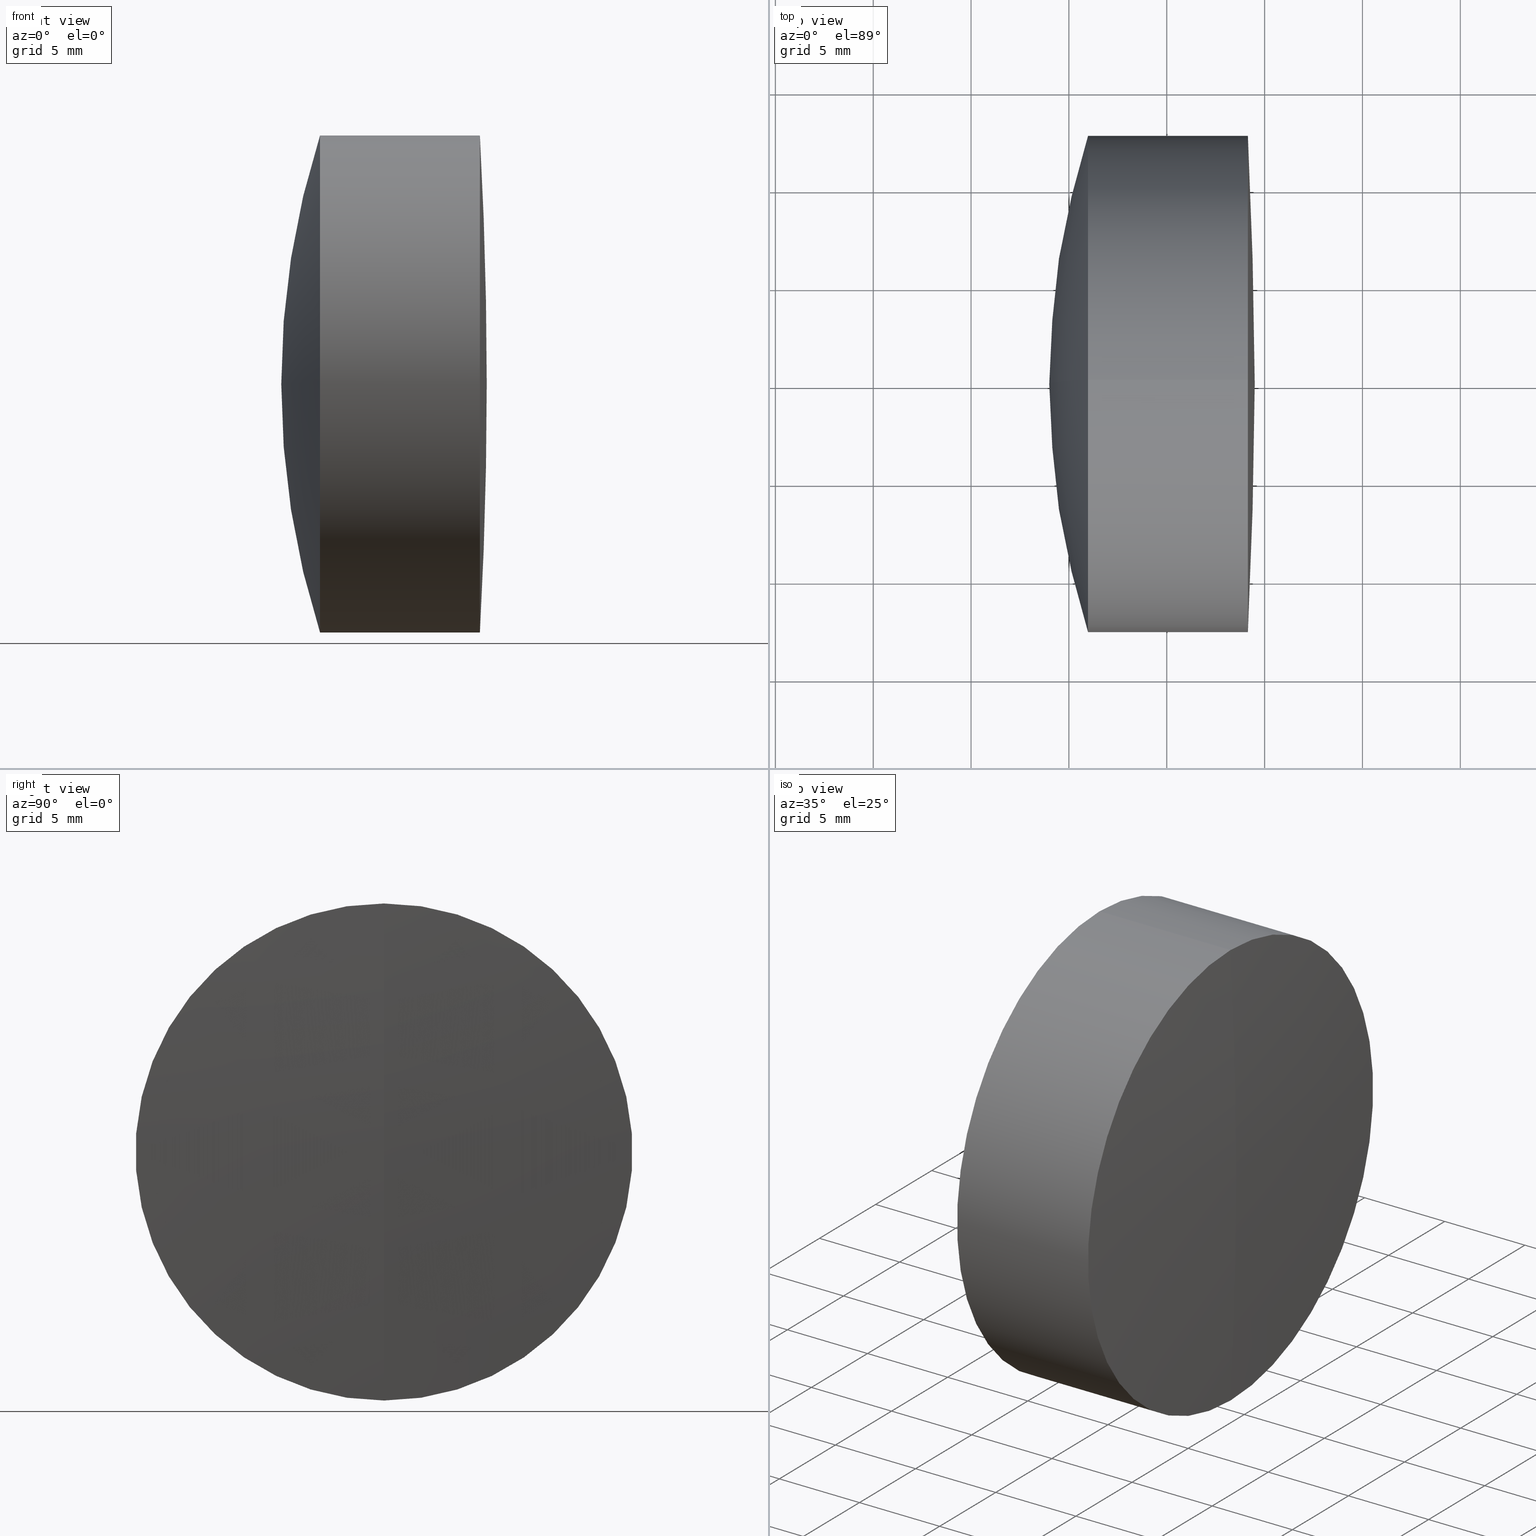
[diagram: canonical four-view strip — front | top / right | iso, engineering-drawing reading convention]
A machine part, canonical four-view strip (front | top / right | iso — engineering-drawing reading convention). The complete STEP part file that produces these views, byte-faithful:
ISO-10303-21;
HEADER;
FILE_DESCRIPTION (( 'STEP AP214' ),
    '1' );
FILE_NAME ('145055.STEP',
    '2019-05-13T07:56:06',
    ( 'user' ),
    ( '΢���й�' ),
    'SwSTEP 2.0',
    'SolidWorks 2016',
    '' );
FILE_SCHEMA (( 'AUTOMOTIVE_DESIGN' ));
ENDSEC;

DATA;
#1 = FILL_AREA_STYLE_COLOUR ( '', #113 ) ;
#2 = ORIENTED_EDGE ( 'NONE', *, *, #186, .F. ) ;
#3 = DIRECTION ( 'NONE',  ( 0.0000000000000000000, 0.0000000000000000000, 1.000000000000000000 ) ) ;
#4 = DIRECTION ( 'NONE',  ( 0.0000000000000000000, -1.000000000000000000, 0.0000000000000000000 ) ) ;
#5 = AXIS2_PLACEMENT_3D ( 'NONE', #204, #192, #209 ) ;
#6 = CIRCLE ( 'NONE', #199, 12.70000000000001000 ) ;
#7 = VERTEX_POINT ( 'NONE', #255 ) ;
#8 = CARTESIAN_POINT ( 'NONE',  ( 161.8331716928335000, 0.0000000000000000000, 12.69999999999999600 ) ) ;
#9 =( NAMED_UNIT ( * ) SI_UNIT ( $, .STERADIAN. ) SOLID_ANGLE_UNIT ( ) );
#10 = STYLED_ITEM ( 'NONE', ( #311 ), #265 ) ;
#11 = ADVANCED_FACE ( 'NONE', ( #98 ), #27, .F. ) ;
#12 = DIRECTION ( 'NONE',  ( -1.000000000000000000, -0.0000000000000000000, -0.0000000000000000000 ) ) ;
#13 = ORIENTED_EDGE ( 'NONE', *, *, #299, .T. ) ;
#14 = ADVANCED_FACE ( 'NONE', ( #160 ), #109, .T. ) ;
#15 = SURFACE_SIDE_STYLE ('',( #104 ) ) ;
#16 = EDGE_CURVE ( 'NONE', #56, #7, #328, .T. ) ;
#17 = CARTESIAN_POINT ( 'NONE',  ( 161.8331716928335000, 0.0000000000000000000, 0.0000000000000000000 ) ) ;
#18 = FACE_OUTER_BOUND ( 'NONE', #159, .T. ) ;
#19 = CARTESIAN_POINT ( 'NONE',  ( -0.5519199926577972300, 1.555301434917139400E-015, -12.70000000000000800 ) ) ;
#20 = CARTESIAN_POINT ( 'NONE',  ( 270.6958458084194500, 0.0000000000000000000, -3.673513936803738400E-015 ) ) ;
#21 = DIRECTION ( 'NONE',  ( 0.0000000000000000000, 0.0000000000000000000, 1.000000000000000000 ) ) ;
#22 = DIRECTION ( 'NONE',  ( 0.0000000000000000000, -1.224646799147353200E-016, 1.000000000000000000 ) ) ;
#23 = LINE ( 'NONE', #19, #237 ) ;
#24 = ORIENTED_EDGE ( 'NONE', *, *, #82, .F. ) ;
#25 = AXIS2_PLACEMENT_3D ( 'NONE', #308, #245, #220 ) ;
#26 = EDGE_CURVE ( 'NONE', #102, #137, #97, .T. ) ;
#27 = SPHERICAL_SURFACE ( 'NONE', #28, 25.90000000000001300 ) ;
#28 = AXIS2_PLACEMENT_3D ( 'NONE', #228, #50, #64 ) ;
#29 =( GEOMETRIC_REPRESENTATION_CONTEXT ( 3 ) GLOBAL_UNCERTAINTY_ASSIGNED_CONTEXT ( ( #84 ) ) GLOBAL_UNIT_ASSIGNED_CONTEXT ( ( #132, #76, #31 ) ) REPRESENTATION_CONTEXT ( 'NONE', 'WORKASPACE' ) );
#30 = VERTEX_POINT ( 'NONE', #227 ) ;
#31 =( NAMED_UNIT ( * ) SI_UNIT ( $, .STERADIAN. ) SOLID_ANGLE_UNIT ( ) );
#32 = AXIS2_PLACEMENT_3D ( 'NONE', #167, #140, #283 ) ;
#33 = CIRCLE ( 'NONE', #187, 25.90000000000000900 ) ;
#34 = LINE ( 'NONE', #127, #205 ) ;
#35 = PRODUCT_DEFINITION_CONTEXT ( 'detailed design', #59, 'design' ) ;
#36 =( LENGTH_UNIT ( ) NAMED_UNIT ( * ) SI_UNIT ( .MILLI., .METRE. ) );
#37 = LINE ( 'NONE', #309, #211 ) ;
#38 = DIRECTION ( 'NONE',  ( 0.0000000000000000000, 0.0000000000000000000, -1.000000000000000000 ) ) ;
#39 = EDGE_LOOP ( 'NONE', ( #24, #52, #298 ) ) ;
#40 = DIRECTION ( 'NONE',  ( 0.0000000000000000000, 1.000000000000000000, 0.0000000000000000000 ) ) ;
#41 = PRODUCT_RELATED_PRODUCT_CATEGORY ( 'part', '', ( #172 ) ) ;
#42 = DIRECTION ( 'NONE',  ( 0.0000000000000000000, 0.0000000000000000000, 1.000000000000000000 ) ) ;
#43 = STYLED_ITEM ( 'NONE', ( #95 ), #194 ) ;
#44 = CARTESIAN_POINT ( 'NONE',  ( 233.6683955093282600, 0.0000000000000000000, 0.0000000000000000000 ) ) ;
#45 = DIRECTION ( 'NONE',  ( -1.000000000000000000, -0.0000000000000000000, -0.0000000000000000000 ) ) ;
#46 = CIRCLE ( 'NONE', #147, 12.70000000000000600 ) ;
#47 = SPHERICAL_SURFACE ( 'NONE', #260, 41.69999999999998900 ) ;
#48 = CLOSED_SHELL ( 'NONE', ( #318, #303, #174, #143, #158, #322 ) ) ;
#49 = DIRECTION ( 'NONE',  ( 0.0000000000000000000, 0.0000000000000000000, 1.000000000000000000 ) ) ;
#50 = DIRECTION ( 'NONE',  ( 0.0000000000000000000, 1.000000000000000000, 0.0000000000000000000 ) ) ;
#51 = EDGE_CURVE ( 'NONE', #56, #55, #168, .T. ) ;
#52 = ORIENTED_EDGE ( 'NONE', *, *, #179, .T. ) ;
#53 = DIRECTION ( 'NONE',  ( 0.0000000000000000000, 0.0000000000000000000, 1.000000000000000000 ) ) ;
#54 = APPLICATION_PROTOCOL_DEFINITION ( 'draft international standard', 'automotive_design', 1998, #59 ) ;
#55 = VERTEX_POINT ( 'NONE', #257 ) ;
#56 = VERTEX_POINT ( 'NONE', #100 ) ;
#57 = FACE_OUTER_BOUND ( 'NONE', #302, .T. ) ;
#58 = AXIS2_PLACEMENT_3D ( 'NONE', #218, #161, #22 ) ;
#59 = APPLICATION_CONTEXT ( 'automotive_design' ) ;
#60 = ORIENTED_EDGE ( 'NONE', *, *, #136, .F. ) ;
#61 = AXIS2_PLACEMENT_3D ( 'NONE', #114, #271, #301 ) ;
#62 = DIRECTION ( 'NONE',  ( -1.000000000000000000, -0.0000000000000000000, -0.0000000000000000000 ) ) ;
#63 = FACE_OUTER_BOUND ( 'NONE', #290, .T. ) ;
#64 = DIRECTION ( 'NONE',  ( 0.0000000000000000000, 0.0000000000000000000, 1.000000000000000000 ) ) ;
#65 = SURFACE_STYLE_USAGE ( .BOTH. , #81 ) ;
#66 = DIRECTION ( 'NONE',  ( 0.0000000000000000000, 0.0000000000000000000, 1.000000000000000000 ) ) ;
#67 = FACE_OUTER_BOUND ( 'NONE', #154, .T. ) ;
#68 = CARTESIAN_POINT ( 'NONE',  ( 211.0958458084194300, 0.0000000000000000000, -3.185954776904472300E-015 ) ) ;
#69 = CARTESIAN_POINT ( 'NONE',  ( 233.6683955093282600, 0.0000000000000000000, 12.70000000000000600 ) ) ;
#70 = ORIENTED_EDGE ( 'NONE', *, *, #136, .T. ) ;
#71 = DIRECTION ( 'NONE',  ( 0.0000000000000000000, 1.000000000000000000, 0.0000000000000000000 ) ) ;
#72 = MECHANICAL_DESIGN_GEOMETRIC_PRESENTATION_REPRESENTATION (  '', ( #164 ), #29 ) ;
#73 = DIRECTION ( 'NONE',  ( 0.0000000000000000000, 0.0000000000000000000, 1.000000000000000000 ) ) ;
#74 = CARTESIAN_POINT ( 'NONE',  ( 239.1460140306284900, 0.0000000000000000000, 0.0000000000000000000 ) ) ;
#75 = CIRCLE ( 'NONE', #293, 12.69999999999999600 ) ;
#76 =( NAMED_UNIT ( * ) PLANE_ANGLE_UNIT ( ) SI_UNIT ( $, .RADIAN. ) );
#77 = CARTESIAN_POINT ( 'NONE',  ( 239.1460140306284900, 0.0000000000000000000, 0.0000000000000000000 ) ) ;
#78 = EDGE_LOOP ( 'NONE', ( #212, #326, #236 ) ) ;
#79 = EDGE_CURVE ( 'NONE', #30, #102, #286, .T. ) ;
#80 = ORIENTED_EDGE ( 'NONE', *, *, #79, .F. ) ;
#81 = SURFACE_SIDE_STYLE ('',( #117 ) ) ;
#82 = EDGE_CURVE ( 'NONE', #169, #346, #33, .T. ) ;
#83 = CIRCLE ( 'NONE', #116, 41.69999999999998900 ) ;
#84 = UNCERTAINTY_MEASURE_WITH_UNIT (LENGTH_MEASURE( 1.000000000000000100E-005 ), #132, 'distance_accuracy_value', 'NONE');
#85 = AXIS2_PLACEMENT_3D ( 'NONE', #256, #112, #282 ) ;
#86 = EDGE_LOOP ( 'NONE', ( #314, #115, #294, #92 ) ) ;
#87 = EDGE_CURVE ( 'NONE', #105, #191, #90, .T. ) ;
#88 = EDGE_CURVE ( 'NONE', #137, #310, #83, .T. ) ;
#89 = COLOUR_RGB ( '',1.000000000000000000, 1.000000000000000000, 1.000000000000000000 ) ;
#90 = CIRCLE ( 'NONE', #171, 25.90000000000001300 ) ;
#91 = CARTESIAN_POINT ( 'NONE',  ( 211.0958458084194300, 0.0000000000000000000, -3.185954776904472300E-015 ) ) ;
#92 = ORIENTED_EDGE ( 'NONE', *, *, #344, .F. ) ;
#93 = FILL_AREA_STYLE ('',( #267 ) ) ;
#94 = MECHANICAL_DESIGN_GEOMETRIC_PRESENTATION_REPRESENTATION (  '', ( #10 ), #229 ) ;
#95 = PRESENTATION_STYLE_ASSIGNMENT (( #65 ) ) ;
#96 = DIRECTION ( 'NONE',  ( -0.0000000000000000000, 1.000000000000000000, 1.224646799147353200E-016 ) ) ;
#97 = CIRCLE ( 'NONE', #85, 12.69999999999999600 ) ;
#98 = FACE_OUTER_BOUND ( 'NONE', #185, .T. ) ;
#99 = CYLINDRICAL_SURFACE ( 'NONE', #315, 12.69999999999999600 ) ;
#100 = CARTESIAN_POINT ( 'NONE',  ( 239.4958458084194600, 0.0000000000000000000, 1.412630082816472000E-014 ) ) ;
#101 = AXIS2_PLACEMENT_3D ( 'NONE', #135, #173, #53 ) ;
#102 = VERTEX_POINT ( 'NONE', #241 ) ;
#103 = AXIS2_PLACEMENT_3D ( 'NONE', #163, #202, #176 ) ;
#104 = SURFACE_STYLE_FILL_AREA ( #108 ) ;
#105 = VERTEX_POINT ( 'NONE', #313 ) ;
#106 = EDGE_CURVE ( 'NONE', #346, #137, #34, .T. ) ;
#107 = FACE_OUTER_BOUND ( 'NONE', #39, .T. ) ;
#108 = FILL_AREA_STYLE ('',( #279 ) ) ;
#109 = SPHERICAL_SURFACE ( 'NONE', #252, 230.7000000000000200 ) ;
#110 = CIRCLE ( 'NONE', #61, 25.90000000000000900 ) ;
#111 = SURFACE_STYLE_USAGE ( .BOTH. , #15 ) ;
#112 = DIRECTION ( 'NONE',  ( -1.000000000000000000, -0.0000000000000000000, -0.0000000000000000000 ) ) ;
#113 = COLOUR_RGB ( '',1.000000000000000000, 1.000000000000000000, 1.000000000000000000 ) ;
#114 = CARTESIAN_POINT ( 'NONE',  ( 211.0958458084194300, 0.0000000000000000000, -3.185954776904472300E-015 ) ) ;
#115 = ORIENTED_EDGE ( 'NONE', *, *, #305, .T. ) ;
#116 = AXIS2_PLACEMENT_3D ( 'NONE', #274, #96, #213 ) ;
#117 = SURFACE_STYLE_FILL_AREA ( #133 ) ;
#118 = ADVANCED_FACE ( 'NONE', ( #57 ), #183, .F. ) ;
#119 = DIRECTION ( 'NONE',  ( -1.000000000000000000, -0.0000000000000000000, -0.0000000000000000000 ) ) ;
#120 = DIRECTION ( 'NONE',  ( 0.0000000000000000000, 0.0000000000000000000, 1.000000000000000000 ) ) ;
#121 = ORIENTED_EDGE ( 'NONE', *, *, #26, .F. ) ;
#122 = ORIENTED_EDGE ( 'NONE', *, *, #179, .F. ) ;
#123 = SURFACE_STYLE_USAGE ( .BOTH. , #250 ) ;
#124 = PRESENTATION_LAYER_ASSIGNMENT (  '', '', ( #10 ) ) ;
#125 =( NAMED_UNIT ( * ) SI_UNIT ( $, .STERADIAN. ) SOLID_ANGLE_UNIT ( ) );
#126 = DIRECTION ( 'NONE',  ( -1.000000000000000000, -0.0000000000000000000, -0.0000000000000000000 ) ) ;
#127 = CARTESIAN_POINT ( 'NONE',  ( 161.8331716928335000, 1.555301434917138000E-015, -12.69999999999999600 ) ) ;
#128 = EDGE_LOOP ( 'NONE', ( #145, #148, #121, #80 ) ) ;
#129 = AXIS2_PLACEMENT_3D ( 'NONE', #77, #276, #334 ) ;
#130 =( NAMED_UNIT ( * ) PLANE_ANGLE_UNIT ( ) SI_UNIT ( $, .RADIAN. ) );
#131 = ORIENTED_EDGE ( 'NONE', *, *, #335, .F. ) ;
#132 =( LENGTH_UNIT ( ) NAMED_UNIT ( * ) SI_UNIT ( .MILLI., .METRE. ) );
#133 = FILL_AREA_STYLE ('',( #1 ) ) ;
#134 = AXIS2_PLACEMENT_3D ( 'NONE', #184, #263, #217 ) ;
#135 = CARTESIAN_POINT ( 'NONE',  ( 211.0958458084194300, 0.0000000000000000000, -3.185954776904472300E-015 ) ) ;
#136 = EDGE_CURVE ( 'NONE', #105, #219, #323, .T. ) ;
#137 = VERTEX_POINT ( 'NONE', #138 ) ;
#138 = CARTESIAN_POINT ( 'NONE',  ( 230.9768327290389300, 1.555301434917137800E-015, -12.69999999999999800 ) ) ;
#139 = EDGE_CURVE ( 'NONE', #191, #219, #46, .T. ) ;
#140 = DIRECTION ( 'NONE',  ( -1.000000000000000000, -0.0000000000000000000, -0.0000000000000000000 ) ) ;
#141 = SPHERICAL_SURFACE ( 'NONE', #101, 25.90000000000000900 ) ;
#142 = SHAPE_DEFINITION_REPRESENTATION ( #321, #194 ) ;
#143 = ADVANCED_FACE ( 'NONE', ( #230 ), #278, .T. ) ;
#144 = DIRECTION ( 'NONE',  ( 0.0000000000000000000, 0.0000000000000000000, 1.000000000000000000 ) ) ;
#145 = ORIENTED_EDGE ( 'NONE', *, *, #155, .T. ) ;
#146 = CARTESIAN_POINT ( 'NONE',  ( 161.8331716928335000, 0.0000000000000000000, 0.0000000000000000000 ) ) ;
#147 = AXIS2_PLACEMENT_3D ( 'NONE', #247, #248, #66 ) ;
#148 = ORIENTED_EDGE ( 'NONE', *, *, #106, .T. ) ;
#149 = APPLICATION_CONTEXT ( 'automotive_design' ) ;
#150 = EDGE_CURVE ( 'NONE', #7, #55, #6, .T. ) ;
#151 = AXIS2_PLACEMENT_3D ( 'NONE', #231, #232, #175 ) ;
#152 = ORIENTED_EDGE ( 'NONE', *, *, #344, .T. ) ;
#153 = FACE_OUTER_BOUND ( 'NONE', #181, .T. ) ;
#154 = EDGE_LOOP ( 'NONE', ( #233, #182, #152, #131 ) ) ;
#155 = EDGE_CURVE ( 'NONE', #30, #346, #75, .T. ) ;
#156 = COLOUR_RGB ( '',1.000000000000000000, 1.000000000000000000, 1.000000000000000000 ) ;
#157 = DIRECTION ( 'NONE',  ( -1.000000000000000000, -0.0000000000000000000, -0.0000000000000000000 ) ) ;
#158 = ADVANCED_FACE ( 'NONE', ( #254 ), #99, .T. ) ;
#159 = EDGE_LOOP ( 'NONE', ( #122, #264, #253 ) ) ;
#160 = FACE_OUTER_BOUND ( 'NONE', #243, .T. ) ;
#161 = DIRECTION ( 'NONE',  ( -0.0000000000000000000, 1.000000000000000000, 1.224646799147353200E-016 ) ) ;
#162 = CARTESIAN_POINT ( 'NONE',  ( 270.6958458084194500, 0.0000000000000000000, -3.673513936803738400E-015 ) ) ;
#163 = CARTESIAN_POINT ( 'NONE',  ( 211.0958458084194300, 0.0000000000000000000, -3.185954776904472300E-015 ) ) ;
#164 = STYLED_ITEM ( 'NONE', ( #340 ), #324 ) ;
#165 = ORIENTED_EDGE ( 'NONE', *, *, #26, .T. ) ;
#166 = CARTESIAN_POINT ( 'NONE',  ( 8.795845808419439700, 0.0000000000000000000, 0.0000000000000000000 ) ) ;
#167 = CARTESIAN_POINT ( 'NONE',  ( 230.9768327290389300, 0.0000000000000000000, 0.0000000000000000000 ) ) ;
#168 = CIRCLE ( 'NONE', #58, 230.7000000000000200 ) ;
#169 = VERTEX_POINT ( 'NONE', #280 ) ;
#170 = CIRCLE ( 'NONE', #32, 12.69999999999999600 ) ;
#171 = AXIS2_PLACEMENT_3D ( 'NONE', #331, #4, #304 ) ;
#172 = PRODUCT ( '145055', '145055', '', ( #288 ) ) ;
#173 = DIRECTION ( 'NONE',  ( 0.0000000000000000000, 1.000000000000000000, 0.0000000000000000000 ) ) ;
#174 = ADVANCED_FACE ( 'NONE', ( #63 ), #47, .T. ) ;
#175 = DIRECTION ( 'NONE',  ( 0.0000000000000000000, 0.0000000000000000000, 1.000000000000000000 ) ) ;
#176 = DIRECTION ( 'NONE',  ( 0.0000000000000000000, 0.0000000000000000000, 1.000000000000000000 ) ) ;
#177 = ORIENTED_EDGE ( 'NONE', *, *, #335, .T. ) ;
#178 = DIRECTION ( 'NONE',  ( 0.0000000000000000000, 0.0000000000000000000, 1.000000000000000000 ) ) ;
#179 = EDGE_CURVE ( 'NONE', #169, #30, #110, .T. ) ;
#180 = CIRCLE ( 'NONE', #262, 12.69999999999999600 ) ;
#181 = EDGE_LOOP ( 'NONE', ( #277, #224, #291 ) ) ;
#182 = ORIENTED_EDGE ( 'NONE', *, *, #198, .T. ) ;
#183 = SPHERICAL_SURFACE ( 'NONE', #103, 25.90000000000001300 ) ;
#184 = CARTESIAN_POINT ( 'NONE',  ( -0.5519199926577972300, 0.0000000000000000000, 0.0000000000000000000 ) ) ;
#185 = EDGE_LOOP ( 'NONE', ( #60, #259, #297 ) ) ;
#186 = EDGE_CURVE ( 'NONE', #102, #310, #196, .T. ) ;
#187 = AXIS2_PLACEMENT_3D ( 'NONE', #68, #258, #251 ) ;
#188 =( LENGTH_UNIT ( ) NAMED_UNIT ( * ) SI_UNIT ( .MILLI., .METRE. ) );
#189 = DIRECTION ( 'NONE',  ( -1.000000000000000000, -0.0000000000000000000, -0.0000000000000000000 ) ) ;
#190 = EDGE_LOOP ( 'NONE', ( #281, #13, #316, #333 ) ) ;
#191 = VERTEX_POINT ( 'NONE', #69 ) ;
#192 = DIRECTION ( 'NONE',  ( 0.0000000000000000000, 0.0000000000000000000, 1.000000000000000000 ) ) ;
#193 = MECHANICAL_DESIGN_GEOMETRIC_PRESENTATION_REPRESENTATION (  '', ( #43 ), #336 ) ;
#194 = ADVANCED_BREP_SHAPE_REPRESENTATION ( '145055', ( #265, #324, #5 ), #320 ) ;
#195 = CARTESIAN_POINT ( 'NONE',  ( 8.795845808419439700, 0.0000000000000000000, 0.0000000000000000000 ) ) ;
#196 = CIRCLE ( 'NONE', #268, 41.69999999999998900 ) ;
#197 = CARTESIAN_POINT ( 'NONE',  ( 233.6683955093282600, 0.0000000000000000000, 0.0000000000000000000 ) ) ;
#198 = EDGE_CURVE ( 'NONE', #55, #7, #208, .T. ) ;
#199 = AXIS2_PLACEMENT_3D ( 'NONE', #74, #12, #144 ) ;
#200 = SPHERICAL_SURFACE ( 'NONE', #206, 25.90000000000000900 ) ;
#201 = DIRECTION ( 'NONE',  ( -1.000000000000000000, -0.0000000000000000000, -0.0000000000000000000 ) ) ;
#202 = DIRECTION ( 'NONE',  ( 0.0000000000000000000, 1.000000000000000000, 0.0000000000000000000 ) ) ;
#203 = AXIS2_PLACEMENT_3D ( 'NONE', #195, #71, #21 ) ;
#204 = CARTESIAN_POINT ( 'NONE',  ( 0.0000000000000000000, 0.0000000000000000000, 0.0000000000000000000 ) ) ;
#205 = VECTOR ( 'NONE', #201, 1000.000000000000000 ) ;
#206 = AXIS2_PLACEMENT_3D ( 'NONE', #91, #325, #3 ) ;
#207 = FACE_OUTER_BOUND ( 'NONE', #128, .T. ) ;
#208 = CIRCLE ( 'NONE', #129, 12.70000000000001000 ) ;
#209 = DIRECTION ( 'NONE',  ( 1.000000000000000000, 0.0000000000000000000, 0.0000000000000000000 ) ) ;
#210 = APPLICATION_PROTOCOL_DEFINITION ( 'draft international standard', 'automotive_design', 1998, #149 ) ;
#211 = VECTOR ( 'NONE', #157, 1000.000000000000000 ) ;
#212 = ORIENTED_EDGE ( 'NONE', *, *, #88, .F. ) ;
#213 = DIRECTION ( 'NONE',  ( 0.0000000000000000000, -1.224646799147353000E-016, 1.000000000000000000 ) ) ;
#214 =( NAMED_UNIT ( * ) SI_UNIT ( $, .STERADIAN. ) SOLID_ANGLE_UNIT ( ) );
#215 = PRODUCT_DEFINITION_FORMATION_WITH_SPECIFIED_SOURCE ( '�κ�', '', #172, .NOT_KNOWN. ) ;
#216 = CARTESIAN_POINT ( 'NONE',  ( 228.9958458084194300, 0.0000000000000000000, -1.120125360581508200E-015 ) ) ;
#217 = DIRECTION ( 'NONE',  ( 0.0000000000000000000, 0.0000000000000000000, 1.000000000000000000 ) ) ;
#218 = CARTESIAN_POINT ( 'NONE',  ( 8.795845808419439700, 0.0000000000000000000, 0.0000000000000000000 ) ) ;
#219 = VERTEX_POINT ( 'NONE', #221 ) ;
#220 = DIRECTION ( 'NONE',  ( 0.0000000000000000000, 0.0000000000000000000, -1.000000000000000000 ) ) ;
#221 = CARTESIAN_POINT ( 'NONE',  ( 233.6683955093282600, 1.555301434917139400E-015, -12.70000000000001000 ) ) ;
#222 = CYLINDRICAL_SURFACE ( 'NONE', #134, 12.70000000000000800 ) ;
#223 = DIRECTION ( 'NONE',  ( 0.0000000000000000000, 1.000000000000000000, 0.0000000000000000000 ) ) ;
#224 = ORIENTED_EDGE ( 'NONE', *, *, #51, .T. ) ;
#225 = DIRECTION ( 'NONE',  ( -1.000000000000000000, -0.0000000000000000000, -0.0000000000000000000 ) ) ;
#226 = DIRECTION ( 'NONE',  ( 0.0000000000000000000, 0.0000000000000000000, 1.000000000000000000 ) ) ;
#227 = CARTESIAN_POINT ( 'NONE',  ( 233.6683955093282600, 0.0000000000000000000, 12.69999999999999600 ) ) ;
#228 = CARTESIAN_POINT ( 'NONE',  ( 211.0958458084194300, 0.0000000000000000000, -3.185954776904472300E-015 ) ) ;
#229 =( GEOMETRIC_REPRESENTATION_CONTEXT ( 3 ) GLOBAL_UNCERTAINTY_ASSIGNED_CONTEXT ( ( #292 ) ) GLOBAL_UNIT_ASSIGNED_CONTEXT ( ( #296, #329, #9 ) ) REPRESENTATION_CONTEXT ( 'NONE', 'WORKASPACE' ) );
#230 = FACE_OUTER_BOUND ( 'NONE', #78, .T. ) ;
#231 = CARTESIAN_POINT ( 'NONE',  ( -0.5519199926577972300, 0.0000000000000000000, 0.0000000000000000000 ) ) ;
#232 = DIRECTION ( 'NONE',  ( -1.000000000000000000, -0.0000000000000000000, -0.0000000000000000000 ) ) ;
#233 = ORIENTED_EDGE ( 'NONE', *, *, #305, .F. ) ;
#234 = AXIS2_PLACEMENT_3D ( 'NONE', #162, #223, #269 ) ;
#235 = CARTESIAN_POINT ( 'NONE',  ( 233.6683955093282600, 0.0000000000000000000, 0.0000000000000000000 ) ) ;
#236 = ORIENTED_EDGE ( 'NONE', *, *, #186, .T. ) ;
#237 = VECTOR ( 'NONE', #119, 1000.000000000000000 ) ;
#238 =( NAMED_UNIT ( * ) PLANE_ANGLE_UNIT ( ) SI_UNIT ( $, .RADIAN. ) );
#239 = ORIENTED_EDGE ( 'NONE', *, *, #198, .F. ) ;
#240 = AXIS2_PLACEMENT_3D ( 'NONE', #235, #189, #178 ) ;
#241 = CARTESIAN_POINT ( 'NONE',  ( 230.9768327290389300, 0.0000000000000000000, 12.69999999999999400 ) ) ;
#242 = EDGE_CURVE ( 'NONE', #137, #102, #170, .T. ) ;
#243 = EDGE_LOOP ( 'NONE', ( #272, #317, #239 ) ) ;
#244 = CLOSED_SHELL ( 'NONE', ( #312, #341, #118, #11, #332, #14 ) ) ;
#245 = DIRECTION ( 'NONE',  ( 0.0000000000000000000, -1.000000000000000000, 0.0000000000000000000 ) ) ;
#246 = PRESENTATION_LAYER_ASSIGNMENT (  '', '', ( #164 ) ) ;
#247 = CARTESIAN_POINT ( 'NONE',  ( 233.6683955093282600, 0.0000000000000000000, 0.0000000000000000000 ) ) ;
#248 = DIRECTION ( 'NONE',  ( -1.000000000000000000, -0.0000000000000000000, -0.0000000000000000000 ) ) ;
#249 = ORIENTED_EDGE ( 'NONE', *, *, #87, .F. ) ;
#250 = SURFACE_SIDE_STYLE ('',( #337 ) ) ;
#251 = DIRECTION ( 'NONE',  ( 0.0000000000000000000, -1.224646799147353200E-016, 1.000000000000000000 ) ) ;
#252 = AXIS2_PLACEMENT_3D ( 'NONE', #166, #330, #73 ) ;
#253 = ORIENTED_EDGE ( 'NONE', *, *, #155, .F. ) ;
#254 = FACE_OUTER_BOUND ( 'NONE', #190, .T. ) ;
#255 = CARTESIAN_POINT ( 'NONE',  ( 239.1460140306284900, 0.0000000000000000000, 12.70000000000001000 ) ) ;
#256 = CARTESIAN_POINT ( 'NONE',  ( 230.9768327290389300, 0.0000000000000000000, 0.0000000000000000000 ) ) ;
#257 = CARTESIAN_POINT ( 'NONE',  ( 239.1460140306284900, 1.555301434917139800E-015, -12.70000000000001200 ) ) ;
#258 = DIRECTION ( 'NONE',  ( -0.0000000000000000000, 1.000000000000000000, 1.224646799147353200E-016 ) ) ;
#259 = ORIENTED_EDGE ( 'NONE', *, *, #87, .T. ) ;
#260 = AXIS2_PLACEMENT_3D ( 'NONE', #345, #40, #49 ) ;
#261 = FACE_OUTER_BOUND ( 'NONE', #86, .T. ) ;
#262 = AXIS2_PLACEMENT_3D ( 'NONE', #44, #45, #226 ) ;
#263 = DIRECTION ( 'NONE',  ( -1.000000000000000000, -0.0000000000000000000, -0.0000000000000000000 ) ) ;
#264 = ORIENTED_EDGE ( 'NONE', *, *, #82, .T. ) ;
#265 = MANIFOLD_SOLID_BREP ( '��ת1', #48 ) ;
#266 = ORIENTED_EDGE ( 'NONE', *, *, #88, .T. ) ;
#267 = FILL_AREA_STYLE_COLOUR ( '', #156 ) ;
#268 = AXIS2_PLACEMENT_3D ( 'NONE', #20, #338, #38 ) ;
#269 = DIRECTION ( 'NONE',  ( 0.0000000000000000000, 0.0000000000000000000, 1.000000000000000000 ) ) ;
#270 = CIRCLE ( 'NONE', #240, 12.70000000000000600 ) ;
#271 = DIRECTION ( 'NONE',  ( 0.0000000000000000000, -1.000000000000000000, 0.0000000000000000000 ) ) ;
#272 = ORIENTED_EDGE ( 'NONE', *, *, #51, .F. ) ;
#273 = DIRECTION ( 'NONE',  ( 0.0000000000000000000, 0.0000000000000000000, 1.000000000000000000 ) ) ;
#274 = CARTESIAN_POINT ( 'NONE',  ( 270.6958458084194500, 0.0000000000000000000, -3.673513936803738400E-015 ) ) ;
#275 = AXIS2_PLACEMENT_3D ( 'NONE', #339, #300, #343 ) ;
#276 = DIRECTION ( 'NONE',  ( -1.000000000000000000, -0.0000000000000000000, -0.0000000000000000000 ) ) ;
#277 = ORIENTED_EDGE ( 'NONE', *, *, #16, .F. ) ;
#278 = SPHERICAL_SURFACE ( 'NONE', #234, 41.69999999999998900 ) ;
#279 = FILL_AREA_STYLE_COLOUR ( '', #89 ) ;
#280 = CARTESIAN_POINT ( 'NONE',  ( 236.9958458084194300, 0.0000000000000000000, -1.600037172008649500E-015 ) ) ;
#281 = ORIENTED_EDGE ( 'NONE', *, *, #106, .F. ) ;
#282 = DIRECTION ( 'NONE',  ( 0.0000000000000000000, 0.0000000000000000000, 1.000000000000000000 ) ) ;
#283 = DIRECTION ( 'NONE',  ( 0.0000000000000000000, 0.0000000000000000000, 1.000000000000000000 ) ) ;
#284 = CYLINDRICAL_SURFACE ( 'NONE', #151, 12.70000000000000800 ) ;
#285 = CARTESIAN_POINT ( 'NONE',  ( 233.6683955093282600, 1.555301434917138000E-015, -12.69999999999999600 ) ) ;
#286 = LINE ( 'NONE', #8, #327 ) ;
#287 = PRESENTATION_LAYER_ASSIGNMENT (  '', '', ( #43 ) ) ;
#288 = PRODUCT_CONTEXT ( 'NONE', #149, 'mechanical' ) ;
#289 = CYLINDRICAL_SURFACE ( 'NONE', #342, 12.69999999999999600 ) ;
#290 = EDGE_LOOP ( 'NONE', ( #165, #266, #2 ) ) ;
#291 = ORIENTED_EDGE ( 'NONE', *, *, #150, .F. ) ;
#292 = UNCERTAINTY_MEASURE_WITH_UNIT (LENGTH_MEASURE( 1.000000000000000100E-005 ), #296, 'distance_accuracy_value', 'NONE');
#293 = AXIS2_PLACEMENT_3D ( 'NONE', #197, #306, #273 ) ;
#294 = ORIENTED_EDGE ( 'NONE', *, *, #139, .F. ) ;
#295 = SPHERICAL_SURFACE ( 'NONE', #203, 230.7000000000000200 ) ;
#296 =( LENGTH_UNIT ( ) NAMED_UNIT ( * ) SI_UNIT ( .MILLI., .METRE. ) );
#297 = ORIENTED_EDGE ( 'NONE', *, *, #139, .T. ) ;
#298 = ORIENTED_EDGE ( 'NONE', *, *, #299, .F. ) ;
#299 = EDGE_CURVE ( 'NONE', #346, #30, #180, .T. ) ;
#300 = DIRECTION ( 'NONE',  ( -0.0000000000000000000, 1.000000000000000000, 1.224646799147353200E-016 ) ) ;
#301 = DIRECTION ( 'NONE',  ( 0.0000000000000000000, 0.0000000000000000000, -1.000000000000000000 ) ) ;
#302 = EDGE_LOOP ( 'NONE', ( #249, #70, #177 ) ) ;
#303 = ADVANCED_FACE ( 'NONE', ( #207 ), #289, .T. ) ;
#304 = DIRECTION ( 'NONE',  ( 0.0000000000000000000, 0.0000000000000000000, -1.000000000000000000 ) ) ;
#305 = EDGE_CURVE ( 'NONE', #55, #219, #23, .T. ) ;
#306 = DIRECTION ( 'NONE',  ( -1.000000000000000000, -0.0000000000000000000, -0.0000000000000000000 ) ) ;
#307 = PRODUCT_DEFINITION ( 'δ֪', '', #215, #35 ) ;
#308 = CARTESIAN_POINT ( 'NONE',  ( 8.795845808419439700, 0.0000000000000000000, 0.0000000000000000000 ) ) ;
#309 = CARTESIAN_POINT ( 'NONE',  ( -0.5519199926577972300, 0.0000000000000000000, 12.70000000000000800 ) ) ;
#310 = VERTEX_POINT ( 'NONE', #216 ) ;
#311 = PRESENTATION_STYLE_ASSIGNMENT (( #111 ) ) ;
#312 = ADVANCED_FACE ( 'NONE', ( #153 ), #295, .T. ) ;
#313 = CARTESIAN_POINT ( 'NONE',  ( 236.9958458084194300, 0.0000000000000000000, -1.600037172008649300E-015 ) ) ;
#314 = ORIENTED_EDGE ( 'NONE', *, *, #150, .T. ) ;
#315 = AXIS2_PLACEMENT_3D ( 'NONE', #17, #225, #42 ) ;
#316 = ORIENTED_EDGE ( 'NONE', *, *, #79, .T. ) ;
#317 = ORIENTED_EDGE ( 'NONE', *, *, #16, .T. ) ;
#318 = ADVANCED_FACE ( 'NONE', ( #18 ), #200, .T. ) ;
#319 = UNCERTAINTY_MEASURE_WITH_UNIT (LENGTH_MEASURE( 1.000000000000000100E-005 ), #36, 'distance_accuracy_value', 'NONE');
#320 =( GEOMETRIC_REPRESENTATION_CONTEXT ( 3 ) GLOBAL_UNCERTAINTY_ASSIGNED_CONTEXT ( ( #319 ) ) GLOBAL_UNIT_ASSIGNED_CONTEXT ( ( #36, #130, #125 ) ) REPRESENTATION_CONTEXT ( 'NONE', 'WORKASPACE' ) );
#321 = PRODUCT_DEFINITION_SHAPE ( 'NONE', 'NONE',  #307 ) ;
#322 = ADVANCED_FACE ( 'NONE', ( #107 ), #141, .T. ) ;
#323 = CIRCLE ( 'NONE', #275, 25.90000000000001300 ) ;
#324 = MANIFOLD_SOLID_BREP ( '��ת3', #244 ) ;
#325 = DIRECTION ( 'NONE',  ( 0.0000000000000000000, 1.000000000000000000, 0.0000000000000000000 ) ) ;
#326 = ORIENTED_EDGE ( 'NONE', *, *, #242, .T. ) ;
#327 = VECTOR ( 'NONE', #62, 1000.000000000000000 ) ;
#328 = CIRCLE ( 'NONE', #25, 230.7000000000000200 ) ;
#329 =( NAMED_UNIT ( * ) PLANE_ANGLE_UNIT ( ) SI_UNIT ( $, .RADIAN. ) );
#330 = DIRECTION ( 'NONE',  ( 0.0000000000000000000, 1.000000000000000000, 0.0000000000000000000 ) ) ;
#331 = CARTESIAN_POINT ( 'NONE',  ( 211.0958458084194300, 0.0000000000000000000, -3.185954776904472300E-015 ) ) ;
#332 = ADVANCED_FACE ( 'NONE', ( #67 ), #284, .T. ) ;
#333 = ORIENTED_EDGE ( 'NONE', *, *, #242, .F. ) ;
#334 = DIRECTION ( 'NONE',  ( 0.0000000000000000000, 0.0000000000000000000, 1.000000000000000000 ) ) ;
#335 = EDGE_CURVE ( 'NONE', #219, #191, #270, .T. ) ;
#336 =( GEOMETRIC_REPRESENTATION_CONTEXT ( 3 ) GLOBAL_UNCERTAINTY_ASSIGNED_CONTEXT ( ( #347 ) ) GLOBAL_UNIT_ASSIGNED_CONTEXT ( ( #188, #238, #214 ) ) REPRESENTATION_CONTEXT ( 'NONE', 'WORKASPACE' ) );
#337 = SURFACE_STYLE_FILL_AREA ( #93 ) ;
#338 = DIRECTION ( 'NONE',  ( 0.0000000000000000000, -1.000000000000000000, 0.0000000000000000000 ) ) ;
#339 = CARTESIAN_POINT ( 'NONE',  ( 211.0958458084194300, 0.0000000000000000000, -3.185954776904472300E-015 ) ) ;
#340 = PRESENTATION_STYLE_ASSIGNMENT (( #123 ) ) ;
#341 = ADVANCED_FACE ( 'NONE', ( #261 ), #222, .T. ) ;
#342 = AXIS2_PLACEMENT_3D ( 'NONE', #146, #126, #120 ) ;
#343 = DIRECTION ( 'NONE',  ( 0.0000000000000000000, -1.224646799147353200E-016, 1.000000000000000000 ) ) ;
#344 = EDGE_CURVE ( 'NONE', #7, #191, #37, .T. ) ;
#345 = CARTESIAN_POINT ( 'NONE',  ( 270.6958458084194500, 0.0000000000000000000, -3.673513936803738400E-015 ) ) ;
#346 = VERTEX_POINT ( 'NONE', #285 ) ;
#347 = UNCERTAINTY_MEASURE_WITH_UNIT (LENGTH_MEASURE( 1.000000000000000100E-005 ), #188, 'distance_accuracy_value', 'NONE');
ENDSEC;
END-ISO-10303-21;
